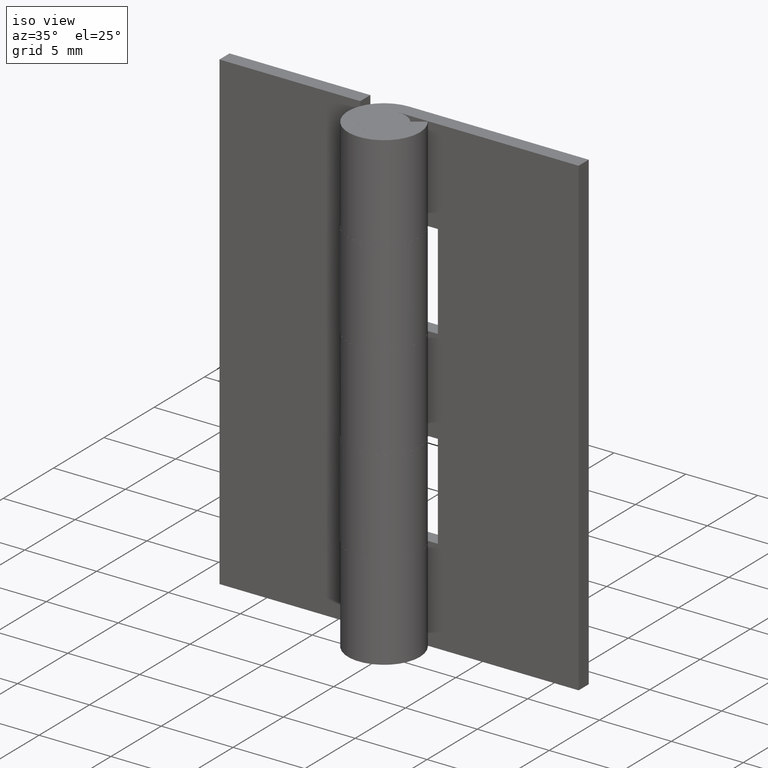
[diagram: clean part render]
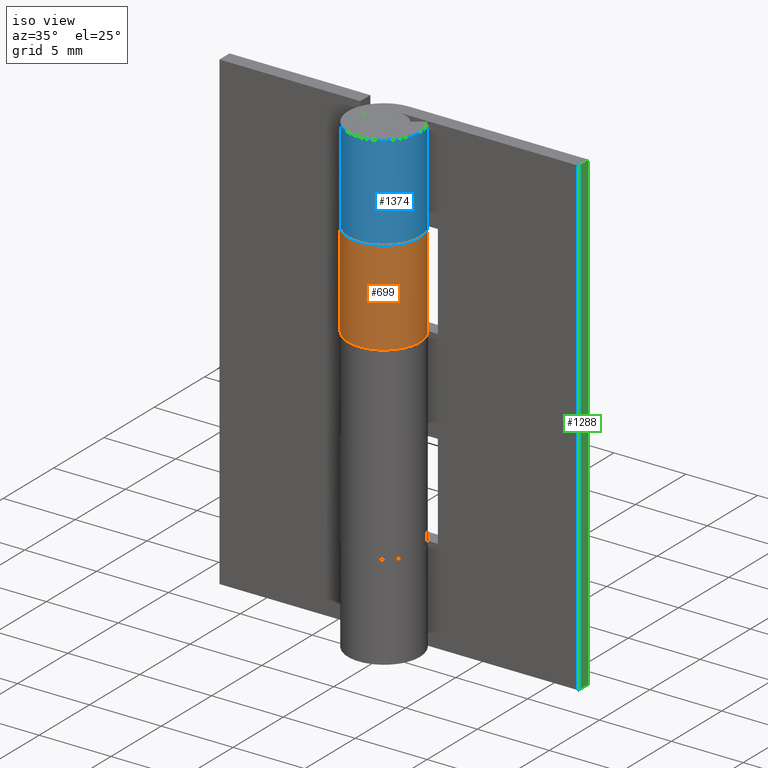
[diagram: same view with three faces highlighted in distinct colors, each labeled with its STEP entity id]
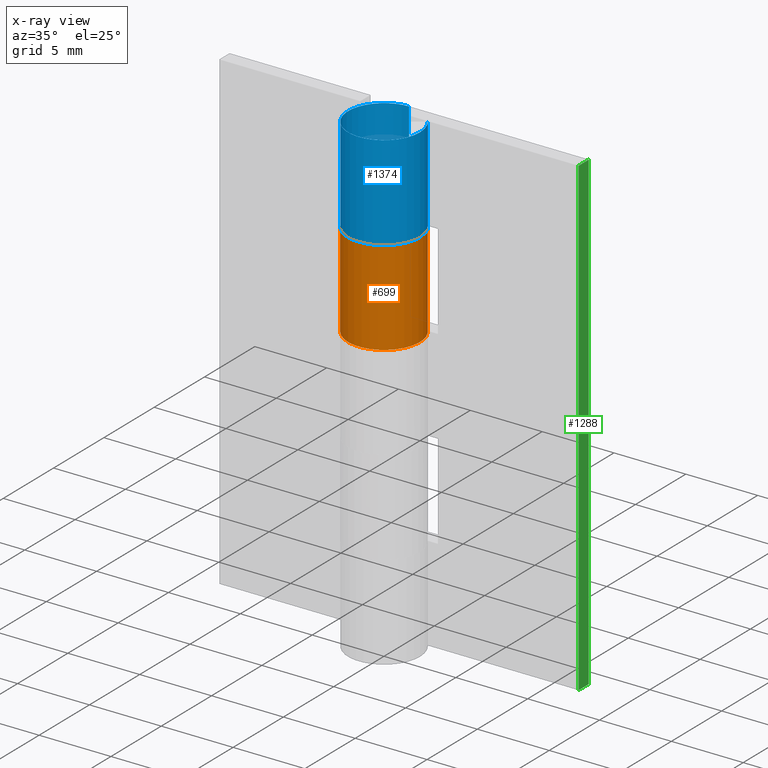
[diagram: x-ray of the same camera — body ghosted, the three highlighted faces saturated]
A machine part, iso view with three faces highlighted in distinct colors.
The next image is the same camera in x-ray (body ghosted, the three faces saturated) — at least one of them is partly hidden behind the body in this view.
Their STEP definitions:

[orange] entity #699 — the highlighted face is a freeform B-spline surface patch.
#155=CARTESIAN_POINT('',(-2.036541185441630,1.450000000000000,19.800003000000050));
#156=VERTEX_POINT('',#155);
#157=CARTESIAN_POINT('',(0.0,2.499999999999945,19.800003000000000));
#158=VERTEX_POINT('',#157);
#159=CARTESIAN_POINT('',(-2.036541185441630,1.450000000000000,19.800003000000050));
#160=CARTESIAN_POINT('',(-3.176813295694007,-0.151524906992693,19.800003000000050));
#161=CARTESIAN_POINT('',(-1.889288151888372,-1.637250829633083,19.800003000000050));
#162=CARTESIAN_POINT('',(-0.601763008082737,-3.122976752273475,19.800003000000050));
#163=CARTESIAN_POINT('',(1.145643923738960,-2.222048604328898,19.800003000000050));
#164=CARTESIAN_POINT('',(2.893050855560658,-1.321120456384321,19.800003000000050));
#165=CARTESIAN_POINT('',(2.429518626273757,0.589439771807841,19.800003000000050));
#166=CARTESIAN_POINT('',(1.965986396986856,2.500000000000000,19.800003000000050));
#167=CARTESIAN_POINT('',(0.0,2.499999999999945,19.800003000000000));
#175=(BOUNDED_CURVE()B_SPLINE_CURVE(2,(#159,#160,#161,#162,#163,#164,#165,#166,#167),.UNSPECIFIED.,.F.,.U.)B_SPLINE_CURVE_WITH_KNOTS((3,2,2,2,3),(0.0,0.250000000000000,0.500000000000000,0.750000000000000,1.0),.UNSPECIFIED.)CURVE()GEOMETRIC_REPRESENTATION_ITEM()RATIONAL_B_SPLINE_CURVE((1.0,0.786058492964466,1.0,0.786058492964466,1.0,0.786058492964466,1.0,0.786058492964466,1.0))REPRESENTATION_ITEM(''));
#176=EDGE_CURVE('',#156,#158,#175,.T.);
#333=CARTESIAN_POINT('',(0.0,2.499999999999945,26.400001999999901));
#334=VERTEX_POINT('',#333);
#375=CARTESIAN_POINT('',(-2.036541185441630,1.450000000000000,26.400001999999901));
#376=VERTEX_POINT('',#375);
#382=CARTESIAN_POINT('',(0.0,2.500000000000000,26.400001999999901));
#383=CARTESIAN_POINT('',(1.965986396986855,2.500000000000000,26.400001999999894));
#384=CARTESIAN_POINT('',(2.429518626273757,0.589439771807841,26.400001999999901));
#385=CARTESIAN_POINT('',(2.893050855560658,-1.321120456384319,26.400001999999894));
#386=CARTESIAN_POINT('',(1.145643923738961,-2.222048604328897,26.400001999999901));
#387=CARTESIAN_POINT('',(-0.601763008082737,-3.122976752273475,26.400001999999894));
#388=CARTESIAN_POINT('',(-1.889288151888373,-1.637250829633083,26.400001999999901));
#389=CARTESIAN_POINT('',(-3.176813295694006,-0.151524906992693,26.400001999999894));
#390=CARTESIAN_POINT('',(-2.036541185441631,1.449999999999999,26.400001999999901));
#398=(BOUNDED_CURVE()B_SPLINE_CURVE(2,(#382,#383,#384,#385,#386,#387,#388,#389,#390),.UNSPECIFIED.,.F.,.U.)B_SPLINE_CURVE_WITH_KNOTS((3,2,2,2,3),(0.0,0.250000000000000,0.500000000000000,0.750000000000000,1.0),.UNSPECIFIED.)CURVE()GEOMETRIC_REPRESENTATION_ITEM()RATIONAL_B_SPLINE_CURVE((1.0,0.786058492964467,1.0,0.786058492964467,1.0,0.786058492964467,1.0,0.786058492964467,1.0))REPRESENTATION_ITEM(''));
#399=EDGE_CURVE('',#334,#376,#398,.T.);
#625=CARTESIAN_POINT('',(-2.036541185441630,1.450000000000000,26.400001999999901));
#626=CARTESIAN_POINT('',(-2.036541185441630,1.450000000000000,19.800003000000050));
#627=QUASI_UNIFORM_CURVE('',1,(#625,#626),.UNSPECIFIED.,.F.,.U.);
#628=EDGE_CURVE('',#376,#156,#627,.T.);
#667=CARTESIAN_POINT('',(-1.983383350728087,1.521903572521801,26.565001974999898));
#668=CARTESIAN_POINT('',(-1.983383350728087,1.521903572521801,19.630878025625002));
#669=CARTESIAN_POINT('',(-3.931331093382118,-1.016711350673684,26.565001974999909));
#670=CARTESIAN_POINT('',(-3.931331093382118,-1.016711350673684,19.630878025625012));
#671=CARTESIAN_POINT('',(-0.996872672313115,-2.292650185962809,26.565001974999898));
#672=CARTESIAN_POINT('',(-0.996872672313115,-2.292650185962809,19.630878025625002));
#673=CARTESIAN_POINT('',(1.937585748755887,-3.568589021251935,26.565001974999909));
#674=CARTESIAN_POINT('',(1.937585748755887,-3.568589021251935,19.630878025625012));
#675=CARTESIAN_POINT('',(2.465714003843077,-0.412619014651694,26.565001974999898));
#676=CARTESIAN_POINT('',(2.465714003843077,-0.412619014651694,19.630878025625002));
#677=CARTESIAN_POINT('',(2.993842258930267,2.743350991948545,26.565001974999909));
#678=CARTESIAN_POINT('',(2.993842258930267,2.743350991948545,19.630878025625012));
#679=CARTESIAN_POINT('',(-0.196147739319611,2.492293334332818,26.565001974999898));
#680=CARTESIAN_POINT('',(-0.196147739319611,2.492293334332818,19.630878025625002));
#688=(BOUNDED_SURFACE()B_SPLINE_SURFACE(1,2,((#667,#669,#671,#673,#675,#677,#679),(#668,#670,#672,#674,#676,#678,#680)),.UNSPECIFIED.,.F.,.F.,.U.)B_SPLINE_SURFACE_WITH_KNOTS((2,2),(3,2,2,3),(0.0,6.934123949374903),(0.0,4.877325885658612,9.754651771317224,14.631977656975840),.UNSPECIFIED.)GEOMETRIC_REPRESENTATION_ITEM()RATIONAL_B_SPLINE_SURFACE(((1.0,0.615661475325658,1.0,0.615661475325658,1.0,0.615661475325658,1.0),(1.0,0.615661475325658,1.0,0.615661475325658,1.0,0.615661475325658,1.0)))REPRESENTATION_ITEM('')SURFACE());
#689=ORIENTED_EDGE('',*,*,#176,.T.);
#690=CARTESIAN_POINT('',(0.0,2.499999999999945,26.400001999999901));
#691=CARTESIAN_POINT('',(0.0,2.499999999999945,19.800003000000000));
#692=QUASI_UNIFORM_CURVE('',1,(#690,#691),.UNSPECIFIED.,.F.,.U.);
#693=EDGE_CURVE('',#334,#158,#692,.T.);
#694=ORIENTED_EDGE('',*,*,#693,.F.);
#695=ORIENTED_EDGE('',*,*,#399,.T.);
#696=ORIENTED_EDGE('',*,*,#628,.T.);
#697=EDGE_LOOP('',(#689,#694,#695,#696));
#698=FACE_OUTER_BOUND('',#697,.T.);
#699=ADVANCED_FACE('',(#698),#688,.T.);

[blue] entity #1374 — the highlighted face is a freeform B-spline surface patch.
#1022=CARTESIAN_POINT('',(0.0,2.499999999999945,26.400001999999901));
#1023=VERTEX_POINT('',#1022);
#1064=CARTESIAN_POINT('',(2.036541185441630,1.450000000000000,26.400001999999901));
#1065=VERTEX_POINT('',#1064);
#1071=CARTESIAN_POINT('',(0.0,2.500000000000000,26.400001999999901));
#1072=CARTESIAN_POINT('',(-1.965986396986855,2.500000000000000,26.400001999999894));
#1073=CARTESIAN_POINT('',(-2.429518626273757,0.589439771807841,26.400001999999901));
#1074=CARTESIAN_POINT('',(-2.893050855560658,-1.321120456384319,26.400001999999894));
#1075=CARTESIAN_POINT('',(-1.145643923738961,-2.222048604328897,26.400001999999901));
#1076=CARTESIAN_POINT('',(0.601763008082737,-3.122976752273475,26.400001999999894));
#1077=CARTESIAN_POINT('',(1.889288151888373,-1.637250829633083,26.400001999999901));
#1078=CARTESIAN_POINT('',(3.176813295694006,-0.151524906992693,26.400001999999894));
#1079=CARTESIAN_POINT('',(2.036541185441631,1.449999999999999,26.400001999999901));
#1087=(BOUNDED_CURVE()B_SPLINE_CURVE(2,(#1071,#1072,#1073,#1074,#1075,#1076,#1077,#1078,#1079),.UNSPECIFIED.,.F.,.U.)B_SPLINE_CURVE_WITH_KNOTS((3,2,2,2,3),(0.0,0.250000000000000,0.500000000000000,0.750000000000000,1.0),.UNSPECIFIED.)CURVE()GEOMETRIC_REPRESENTATION_ITEM()RATIONAL_B_SPLINE_CURVE((1.0,0.786058492964467,1.0,0.786058492964467,1.0,0.786058492964467,1.0,0.786058492964467,1.0))REPRESENTATION_ITEM(''));
#1088=EDGE_CURVE('',#1023,#1065,#1087,.T.);
#1205=CARTESIAN_POINT('',(0.0,2.500000000000000,33.0));
#1206=VERTEX_POINT('',#1205);
#1212=CARTESIAN_POINT('',(2.036541185441630,1.450000000000000,33.0));
#1213=VERTEX_POINT('',#1212);
#1214=CARTESIAN_POINT('',(2.036541185441630,1.450000000000000,33.0));
#1215=CARTESIAN_POINT('',(3.176813295694007,-0.151524906992693,33.0));
#1216=CARTESIAN_POINT('',(1.889288151888372,-1.637250829633083,33.0));
#1217=CARTESIAN_POINT('',(0.601763008082737,-3.122976752273475,33.0));
#1218=CARTESIAN_POINT('',(-1.145643923738960,-2.222048604328898,33.0));
#1219=CARTESIAN_POINT('',(-2.893050855560658,-1.321120456384321,33.0));
#1220=CARTESIAN_POINT('',(-2.429518626273757,0.589439771807841,33.0));
#1221=CARTESIAN_POINT('',(-1.965986396986856,2.500000000000000,33.0));
#1222=CARTESIAN_POINT('',(0.0,2.500000000000000,33.0));
#1230=(BOUNDED_CURVE()B_SPLINE_CURVE(2,(#1214,#1215,#1216,#1217,#1218,#1219,#1220,#1221,#1222),.UNSPECIFIED.,.F.,.U.)B_SPLINE_CURVE_WITH_KNOTS((3,2,2,2,3),(0.0,0.250000000000000,0.500000000000000,0.750000000000000,1.0),.UNSPECIFIED.)CURVE()GEOMETRIC_REPRESENTATION_ITEM()RATIONAL_B_SPLINE_CURVE((1.0,0.786058492964466,1.0,0.786058492964466,1.0,0.786058492964466,1.0,0.786058492964466,1.0))REPRESENTATION_ITEM(''));
#1231=EDGE_CURVE('',#1213,#1206,#1230,.T.);
#1334=CARTESIAN_POINT('',(2.036541185441630,1.450000000000000,33.0));
#1335=CARTESIAN_POINT('',(2.036541185441630,1.450000000000000,26.400001999999901));
#1336=QUASI_UNIFORM_CURVE('',1,(#1334,#1335),.UNSPECIFIED.,.F.,.U.);
#1337=EDGE_CURVE('',#1213,#1065,#1336,.T.);
#1342=CARTESIAN_POINT('',(0.021816338745933,2.499904807660427,33.164999950000009));
#1343=CARTESIAN_POINT('',(0.021816338745933,2.499904807660427,26.230877051249902));
#1344=CARTESIAN_POINT('',(-3.120994735379072,2.527331704395645,33.164999950000009));
#1345=CARTESIAN_POINT('',(-3.120994735379072,2.527331704395645,26.230877051249887));
#1346=CARTESIAN_POINT('',(-2.440740017799832,-0.541099034845259,33.164999950000009));
#1347=CARTESIAN_POINT('',(-2.440740017799832,-0.541099034845259,26.230877051249902));
#1348=CARTESIAN_POINT('',(-1.760485300220591,-3.609529774086163,33.164999950000009));
#1349=CARTESIAN_POINT('',(-1.760485300220591,-3.609529774086163,26.230877051249887));
#1350=CARTESIAN_POINT('',(1.076277742020738,-2.256463210874649,33.164999950000009));
#1351=CARTESIAN_POINT('',(1.076277742020738,-2.256463210874649,26.230877051249902));
#1352=CARTESIAN_POINT('',(3.913040784262066,-0.903396647663137,33.164999950000009));
#1353=CARTESIAN_POINT('',(3.913040784262066,-0.903396647663137,26.230877051249887));
#1354=CARTESIAN_POINT('',(1.956520392131033,1.556286591594048,33.164999950000009));
#1355=CARTESIAN_POINT('',(1.956520392131033,1.556286591594048,26.230877051249902));
#1363=(BOUNDED_SURFACE()B_SPLINE_SURFACE(1,2,((#1342,#1344,#1346,#1348,#1350,#1352,#1354),(#1343,#1345,#1347,#1349,#1351,#1353,#1355)),.UNSPECIFIED.,.F.,.F.,.U.)B_SPLINE_SURFACE_WITH_KNOTS((2,2),(3,2,2,3),(0.0,6.934122898750115),(0.0,4.823427408175702,9.646854816351404,14.470282224527111),.UNSPECIFIED.)GEOMETRIC_REPRESENTATION_ITEM()RATIONAL_B_SPLINE_SURFACE(((1.0,0.622514636637620,1.0,0.622514636637620,1.0,0.622514636637620,1.0),(1.0,0.622514636637620,1.0,0.622514636637620,1.0,0.622514636637620,1.0)))REPRESENTATION_ITEM('')SURFACE());
#1364=ORIENTED_EDGE('',*,*,#1088,.T.);
#1365=ORIENTED_EDGE('',*,*,#1337,.F.);
#1366=ORIENTED_EDGE('',*,*,#1231,.T.);
#1367=CARTESIAN_POINT('',(0.0,2.500000000000000,33.0));
#1368=CARTESIAN_POINT('',(0.0,2.499999999999945,26.400001999999901));
#1369=QUASI_UNIFORM_CURVE('',1,(#1367,#1368),.UNSPECIFIED.,.F.,.U.);
#1370=EDGE_CURVE('',#1206,#1023,#1369,.T.);
#1371=ORIENTED_EDGE('',*,*,#1370,.T.);
#1372=EDGE_LOOP('',(#1364,#1365,#1366,#1371));
#1373=FACE_OUTER_BOUND('',#1372,.T.);
#1374=ADVANCED_FACE('',(#1373),#1363,.T.);

[green] entity #1288 — the highlighted face is a freeform B-spline surface patch.
#1118=CARTESIAN_POINT('',(12.500000000000000,1.500000000000000,0.0));
#1119=VERTEX_POINT('',#1118);
#1120=CARTESIAN_POINT('',(12.500000000000000,2.500000000000000,0.0));
#1121=VERTEX_POINT('',#1120);
#1122=CARTESIAN_POINT('',(12.500000000000000,1.500000000000000,0.0));
#1123=CARTESIAN_POINT('',(12.500000000000000,2.500000000000000,0.0));
#1124=QUASI_UNIFORM_CURVE('',1,(#1122,#1123),.UNSPECIFIED.,.F.,.U.);
#1125=EDGE_CURVE('',#1119,#1121,#1124,.T.);
#1196=CARTESIAN_POINT('',(12.500000000000000,1.500000000000000,33.0));
#1197=VERTEX_POINT('',#1196);
#1198=CARTESIAN_POINT('',(12.500000000000000,2.500000000000000,33.0));
#1199=VERTEX_POINT('',#1198);
#1200=CARTESIAN_POINT('',(12.500000000000000,1.500000000000000,33.0));
#1201=CARTESIAN_POINT('',(12.500000000000000,2.500000000000000,33.0));
#1202=QUASI_UNIFORM_CURVE('',1,(#1200,#1201),.UNSPECIFIED.,.F.,.U.);
#1203=EDGE_CURVE('',#1197,#1199,#1202,.T.);
#1269=CARTESIAN_POINT('',(12.500000000000000,1.450050001938194,-1.648349936039598));
#1270=CARTESIAN_POINT('',(12.500000000000000,1.450050001938194,34.648350821168563));
#1271=CARTESIAN_POINT('',(12.500000000000000,2.549950024883896,-1.648349936039598));
#1272=CARTESIAN_POINT('',(12.500000000000000,2.549950024883896,34.648350821168563));
#1273=B_SPLINE_SURFACE_WITH_KNOTS('',1,1,((#1269,#1271),(#1270,#1272)),.UNSPECIFIED.,.F.,.F.,.U.,(2,2),(2,2),(0.0,36.296700757208157),(0.041708334948495,0.958291687403247),.UNSPECIFIED.);
#1274=ORIENTED_EDGE('',*,*,#1125,.T.);
#1275=CARTESIAN_POINT('',(12.500000000000000,2.500000000000000,33.0));
#1276=CARTESIAN_POINT('',(12.500000000000000,2.500000000000000,0.0));
#1277=QUASI_UNIFORM_CURVE('',1,(#1275,#1276),.UNSPECIFIED.,.F.,.U.);
#1278=EDGE_CURVE('',#1199,#1121,#1277,.T.);
#1279=ORIENTED_EDGE('',*,*,#1278,.F.);
#1280=ORIENTED_EDGE('',*,*,#1203,.F.);
#1281=CARTESIAN_POINT('',(12.500000000000000,1.500000000000000,33.0));
#1282=CARTESIAN_POINT('',(12.500000000000000,1.500000000000000,0.0));
#1283=QUASI_UNIFORM_CURVE('',1,(#1281,#1282),.UNSPECIFIED.,.F.,.U.);
#1284=EDGE_CURVE('',#1197,#1119,#1283,.T.);
#1285=ORIENTED_EDGE('',*,*,#1284,.T.);
#1286=EDGE_LOOP('',(#1274,#1279,#1280,#1285));
#1287=FACE_OUTER_BOUND('',#1286,.T.);
#1288=ADVANCED_FACE('',(#1287),#1273,.F.);